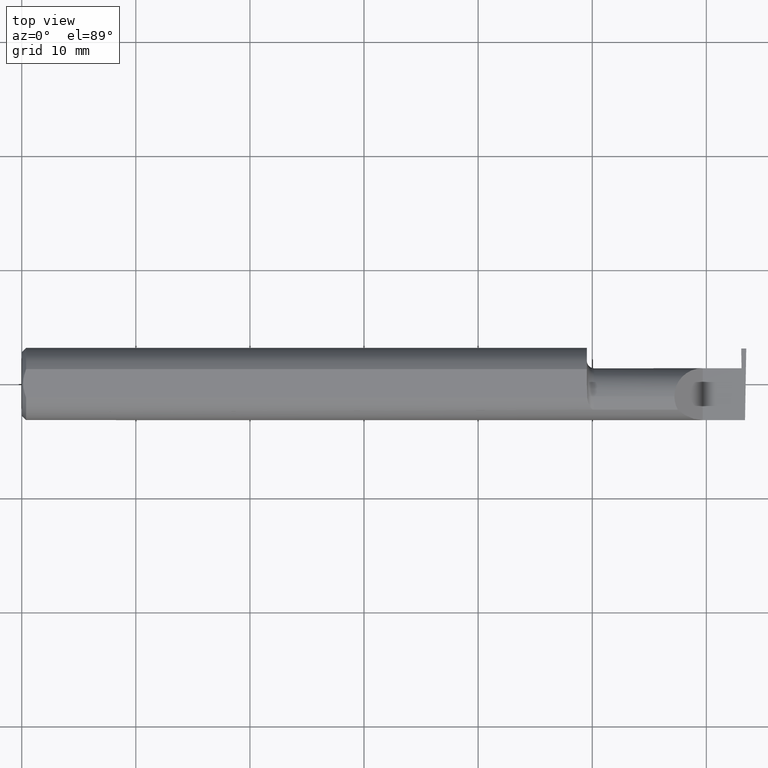
[diagram: clean part render]
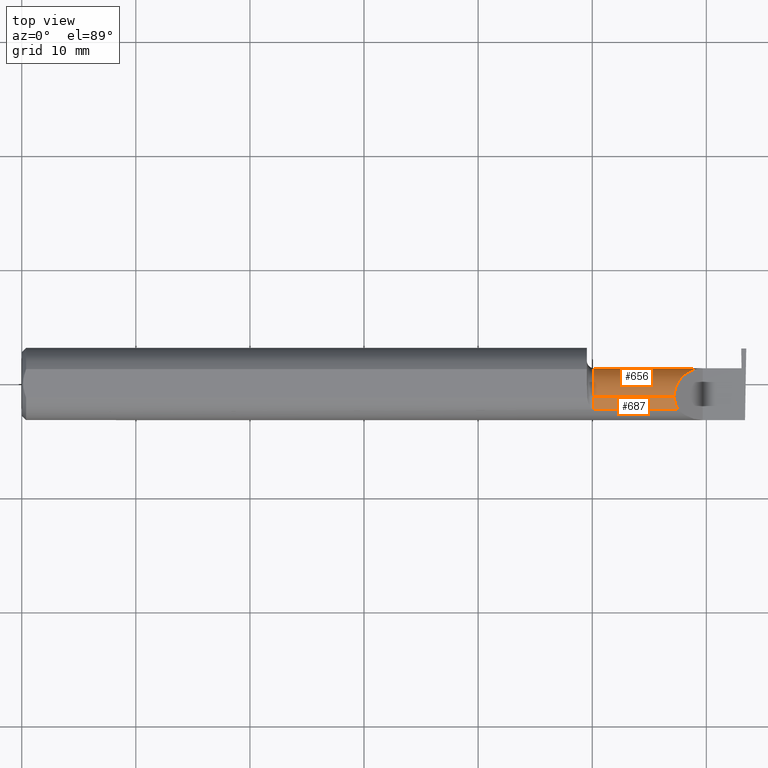
[diagram: same view with one multi-face feature highlighted, each face labeled with its STEP entity id]
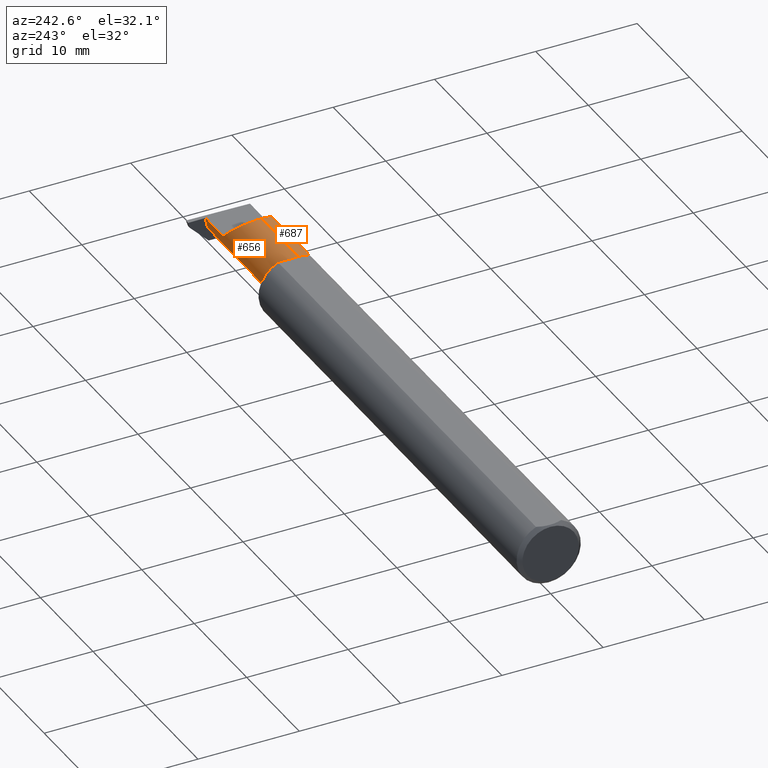
[diagram: same view with one multi-face feature highlighted, each face labeled with its STEP entity id]
A machine part, top view. The highlighted faces form ONE feature: a constant-radius fillet chain: 2 tangent blend faces with common blend radius 2.4892 mm. The faces share edges in the B-rep.
A second angle (auxiliary view) of the same feature is appended — it is thin or edge-on in the first view.
Their STEP definitions:
[1] entity #656 (Cylinder):
#20 = DIRECTION ( 'NONE',  ( 1.000000000000000000, 0.000000000000000000, 0.000000000000000000 ) ) ;
#39 = CARTESIAN_POINT ( 'NONE',  ( 2.483482208140546099, 0.05115612325138108735, -0.02403823089877875352 ) ) ;
#43 = CARTESIAN_POINT ( 'NONE',  ( 2.487353376795599758, -0.04385000000000004172, -0.09799999999999998990 ) ) ;
#58 = EDGE_CURVE ( 'NONE', #237, #217, #454, .T. ) ;
#62 = DIRECTION ( 'NONE',  ( -1.000000000000000000, -0.000000000000000000, -0.000000000000000000 ) ) ;
#67 = CARTESIAN_POINT ( 'NONE',  ( 1.949999999999999956, -0.04385000000000001397, 0.09799999999999998990 ) ) ;
#81 = VERTEX_POINT ( 'NONE', #39 ) ;
#91 = DIRECTION ( 'NONE',  ( -1.000000000000000000, -0.000000000000000000, -0.000000000000000000 ) ) ;
#105 = LINE ( 'NONE', #67, #642 ) ;
#117 = DIRECTION ( 'NONE',  ( -1.000000000000000000, -0.000000000000000000, -0.000000000000000000 ) ) ;
#121 = VECTOR ( 'NONE', #20, 39.37007874015748143 ) ;
#131 = ORIENTED_EDGE ( 'NONE', *, *, #696, .F. ) ;
#148 = CARTESIAN_POINT ( 'NONE',  ( 1.949999999999999956, -0.04385000000000000703, -0.09799999999999998990 ) ) ;
#164 = DIRECTION ( 'NONE',  ( 0.000000000000000000, 0.000000000000000000, 1.000000000000000000 ) ) ;
#167 = ORIENTED_EDGE ( 'NONE', *, *, #617, .T. ) ;
#174 = EDGE_CURVE ( 'NONE', #503, #81, #674, .T. ) ;
#177 = CYLINDRICAL_SURFACE ( 'NONE', #471, 0.09799999999999998990 ) ;
#212 = ORIENTED_EDGE ( 'NONE', *, *, #520, .T. ) ;
#217 = VERTEX_POINT ( 'NONE', #721 ) ;
#224 = CARTESIAN_POINT ( 'NONE',  ( 2.483482208140546099, 0.05115612325138108735, -0.02403823089877875352 ) ) ;
#234 = AXIS2_PLACEMENT_3D ( 'NONE', #260, #513, #638 ) ;
#237 = VERTEX_POINT ( 'NONE', #788 ) ;
#259 = DIRECTION ( 'NONE',  ( 0.000000000000000000, 0.000000000000000000, 1.000000000000000000 ) ) ;
#260 = CARTESIAN_POINT ( 'NONE',  ( 1.974999999999999867, -0.04385000000000001397, 0.000000000000000000 ) ) ;
#279 =( BOUNDED_CURVE ( )  B_SPLINE_CURVE ( 3, ( #284, #730, #306, #556 ),
 .UNSPECIFIED., .F., .T. ) 
 B_SPLINE_CURVE_WITH_KNOTS ( ( 4, 4 ),
 ( 0.000000000000000000, 1.570796326794896558 ),
 .UNSPECIFIED. ) 
 CURVE ( )  GEOMETRIC_REPRESENTATION_ITEM ( )  RATIONAL_B_SPLINE_CURVE ( ( 1.000000000000000000, 0.8047378541243649375, 0.8047378541243649375, 1.000000000000000000 ) ) 
 REPRESENTATION_ITEM ( '' )  );
#284 = CARTESIAN_POINT ( 'NONE',  ( 2.252000000000000668, -0.04385000000000001397, 0.09799999999999998990 ) ) ;
#292 = CARTESIAN_POINT ( 'NONE',  ( 2.485853341463134747, 0.03970102213383013001, -0.06931214282740411070 ) ) ;
#298 = EDGE_CURVE ( 'NONE', #81, #484, #510, .T. ) ;
#306 = CARTESIAN_POINT ( 'NONE',  ( 2.292592929112563738, 0.05415000000000001062, 0.05740707088743667724 ) ) ;
#313 = EDGE_CURVE ( 'NONE', #646, #545, #747, .T. ) ;
#321 = CARTESIAN_POINT ( 'NONE',  ( 2.252000000000000668, -0.04385000000000001397, 0.09799999999999998990 ) ) ;
#343 = CARTESIAN_POINT ( 'NONE',  ( 1.949999999999999956, -0.04385000000000001397, 0.000000000000000000 ) ) ;
#345 = ORIENTED_EDGE ( 'NONE', *, *, #531, .T. ) ;
#365 = AXIS2_PLACEMENT_3D ( 'NONE', #633, #91, #259 ) ;
#366 = FACE_OUTER_BOUND ( 'NONE', #507, .T. ) ;
#369 = CARTESIAN_POINT ( 'NONE',  ( 2.350000000000000089, 0.05414999999999985103, 1.836970198721028825E-17 ) ) ;
#397 = DIRECTION ( 'NONE',  ( -1.000000000000000000, -0.000000000000000000, -0.000000000000000000 ) ) ;
#454 = CIRCLE ( 'NONE', #234, 0.09799999999999998990 ) ;
#471 = AXIS2_PLACEMENT_3D ( 'NONE', #343, #117, #164 ) ;
#472 = CARTESIAN_POINT ( 'NONE',  ( 2.483160734290017047, 0.05314349951121604548, -0.01618353831829651146 ) ) ;
#482 = CARTESIAN_POINT ( 'NONE',  ( 2.483482208140546099, 0.05115612325138108735, -0.02403823089877875352 ) ) ;
#484 = VERTEX_POINT ( 'NONE', #711 ) ;
#490 = CARTESIAN_POINT ( 'NONE',  ( 2.482499999999999929, 0.05414999123725473817, -4.144270477499314721E-05 ) ) ;
#503 = VERTEX_POINT ( 'NONE', #43 ) ;
#507 = EDGE_LOOP ( 'NONE', ( #748, #212, #631, #131, #167, #516, #345, #787 ) ) ;
#510 =( BOUNDED_CURVE ( )  B_SPLINE_CURVE ( 3, ( #224, #472, #624, #490 ),
 .UNSPECIFIED., .F., .F. ) 
 B_SPLINE_CURVE_WITH_KNOTS ( ( 4, 4 ),
 ( 4.463962699426421210, 4.711356644242684411 ),
 .UNSPECIFIED. ) 
 CURVE ( )  GEOMETRIC_REPRESENTATION_ITEM ( )  RATIONAL_B_SPLINE_CURVE ( ( 1.000000000000000000, 0.9949061863228998437, 0.9949061863228998437, 1.000000000000000000 ) ) 
 REPRESENTATION_ITEM ( '' )  );
#513 = DIRECTION ( 'NONE',  ( -1.000000000000000000, -0.000000000000000000, -0.000000000000000000 ) ) ;
#516 = ORIENTED_EDGE ( 'NONE', *, *, #313, .T. ) ;
#518 = LINE ( 'NONE', #148, #784 ) ;
#520 = EDGE_CURVE ( 'NONE', #503, #217, #518, .T. ) ;
#524 = CIRCLE ( 'NONE', #365, 0.09799999999999998990 ) ;
#531 = EDGE_CURVE ( 'NONE', #545, #484, #524, .T. ) ;
#545 = VERTEX_POINT ( 'NONE', #573 ) ;
#556 = CARTESIAN_POINT ( 'NONE',  ( 2.350000000000000089, 0.05414999999999985103, 1.836970198721028825E-17 ) ) ;
#573 = CARTESIAN_POINT ( 'NONE',  ( 2.482499999999999929, 0.05414999999999997593, 6.735572271217495526E-17 ) ) ;
#587 = CARTESIAN_POINT ( 'NONE',  ( 2.487353376795599758, -0.04385000000000004172, -0.09799999999999998990 ) ) ;
#605 = CARTESIAN_POINT ( 'NONE',  ( 2.487354867654527624, 0.002850604310161121684, -0.09799999999999998990 ) ) ;
#614 = CARTESIAN_POINT ( 'NONE',  ( 1.949999999999999956, 0.05414999999999996899, 6.735557395310438818E-17 ) ) ;
#617 = EDGE_CURVE ( 'NONE', #753, #646, #279, .T. ) ;
#624 = CARTESIAN_POINT ( 'NONE',  ( 2.482831655309489793, 0.05414656493488105571, -0.008143655253979821193 ) ) ;
#631 = ORIENTED_EDGE ( 'NONE', *, *, #58, .F. ) ;
#633 = CARTESIAN_POINT ( 'NONE',  ( 2.482499999999999929, -0.04385000000000001397, 0.000000000000000000 ) ) ;
#638 = DIRECTION ( 'NONE',  ( 0.000000000000000000, 0.000000000000000000, 1.000000000000000000 ) ) ;
#642 = VECTOR ( 'NONE', #62, 39.37007874015748143 ) ;
#646 = VERTEX_POINT ( 'NONE', #369 ) ;
#656 = ADVANCED_FACE ( 'NONE', ( #366 ), #177, .T. ) ;
#674 =( BOUNDED_CURVE ( )  B_SPLINE_CURVE ( 3, ( #587, #605, #292, #482 ),
 .UNSPECIFIED., .F., .F. ) 
 B_SPLINE_CURVE_WITH_KNOTS ( ( 4, 4 ),
 ( 3.140983202202990654, 4.463962699426417657 ),
 .UNSPECIFIED. ) 
 CURVE ( )  GEOMETRIC_REPRESENTATION_ITEM ( )  RATIONAL_B_SPLINE_CURVE ( ( 1.000000000000000000, 0.8593853101475611433, 0.8593853101475611433, 1.000000000000000000 ) ) 
 REPRESENTATION_ITEM ( '' )  );
#696 = EDGE_CURVE ( 'NONE', #753, #237, #105, .T. ) ;
#711 = CARTESIAN_POINT ( 'NONE',  ( 2.482499999999999929, 0.05414999123725473817, -4.144270477499314721E-05 ) ) ;
#721 = CARTESIAN_POINT ( 'NONE',  ( 1.974999999999999867, -0.04385000000000000009, -0.09799999999999998990 ) ) ;
#730 = CARTESIAN_POINT ( 'NONE',  ( 2.252000000000000668, 0.01355707088743669450, 0.09799999999999996214 ) ) ;
#747 = LINE ( 'NONE', #614, #121 ) ;
#748 = ORIENTED_EDGE ( 'NONE', *, *, #174, .F. ) ;
#753 = VERTEX_POINT ( 'NONE', #321 ) ;
#784 = VECTOR ( 'NONE', #397, 39.37007874015748143 ) ;
#787 = ORIENTED_EDGE ( 'NONE', *, *, #298, .F. ) ;
#788 = CARTESIAN_POINT ( 'NONE',  ( 1.974999999999999867, -0.04385000000000001397, 0.09799999999999998990 ) ) ;
[2] entity #687 (Cylinder):
#51 = ORIENTED_EDGE ( 'NONE', *, *, #445, .T. ) ;
#62 = DIRECTION ( 'NONE',  ( -1.000000000000000000, -0.000000000000000000, -0.000000000000000000 ) ) ;
#67 = CARTESIAN_POINT ( 'NONE',  ( 1.949999999999999956, -0.04385000000000001397, 0.09799999999999998990 ) ) ;
#88 = CARTESIAN_POINT ( 'NONE',  ( 2.255955442396119004, -0.07583965973232800750, 0.09404455760388212571 ) ) ;
#100 = EDGE_CURVE ( 'NONE', #543, #753, #422, .T. ) ;
#105 = LINE ( 'NONE', #67, #642 ) ;
#137 = LINE ( 'NONE', #742, #575 ) ;
#232 = DIRECTION ( 'NONE',  ( 0.000000000000000000, 0.000000000000000000, 1.000000000000000000 ) ) ;
#237 = VERTEX_POINT ( 'NONE', #788 ) ;
#242 = EDGE_CURVE ( 'NONE', #314, #237, #469, .T. ) ;
#287 = AXIS2_PLACEMENT_3D ( 'NONE', #359, #406, #739 ) ;
#293 = ORIENTED_EDGE ( 'NONE', *, *, #696, .T. ) ;
#314 = VERTEX_POINT ( 'NONE', #370 ) ;
#321 = CARTESIAN_POINT ( 'NONE',  ( 2.252000000000000668, -0.04385000000000001397, 0.09799999999999998990 ) ) ;
#330 = ORIENTED_EDGE ( 'NONE', *, *, #242, .F. ) ;
#359 = CARTESIAN_POINT ( 'NONE',  ( 1.949999999999999956, -0.04385000000000001397, 0.000000000000000000 ) ) ;
#361 = DIRECTION ( 'NONE',  ( 1.000000000000000000, 0.000000000000000000, 0.000000000000000000 ) ) ;
#370 = CARTESIAN_POINT ( 'NONE',  ( 1.974999999999999867, -0.09015216647662489813, 0.08637192471845762942 ) ) ;
#406 = DIRECTION ( 'NONE',  ( -1.000000000000000000, -0.000000000000000000, -0.000000000000000000 ) ) ;
#414 = CARTESIAN_POINT ( 'NONE',  ( 1.974999999999999867, -0.04385000000000001397, 0.000000000000000000 ) ) ;
#419 = FACE_OUTER_BOUND ( 'NONE', #763, .T. ) ;
#422 =( BOUNDED_CURVE ( )  B_SPLINE_CURVE ( 3, ( #530, #88, #574, #526 ),
 .UNSPECIFIED., .F., .T. ) 
 B_SPLINE_CURVE_WITH_KNOTS ( ( 4, 4 ),
 ( 5.791092865617128993, 6.283185307179586232 ),
 .UNSPECIFIED. ) 
 CURVE ( )  GEOMETRIC_REPRESENTATION_ITEM ( )  RATIONAL_B_SPLINE_CURVE ( ( 1.000000000000000000, 0.9799220177372781615, 0.9799220177372781615, 1.000000000000000000 ) ) 
 REPRESENTATION_ITEM ( '' )  );
#427 = AXIS2_PLACEMENT_3D ( 'NONE', #414, #659, #232 ) ;
#445 = EDGE_CURVE ( 'NONE', #314, #543, #137, .T. ) ;
#469 = CIRCLE ( 'NONE', #427, 0.09799999999999998990 ) ;
#470 = CYLINDRICAL_SURFACE ( 'NONE', #287, 0.09799999999999998990 ) ;
#526 = CARTESIAN_POINT ( 'NONE',  ( 2.252000000000000668, -0.04385000000000001397, 0.09799999999999998990 ) ) ;
#530 = CARTESIAN_POINT ( 'NONE',  ( 2.263628075281542973, -0.09015216647662456506, 0.08637192471845794861 ) ) ;
#543 = VERTEX_POINT ( 'NONE', #650 ) ;
#574 = CARTESIAN_POINT ( 'NONE',  ( 2.252000000000000668, -0.06008937020638518284, 0.09799999999999996214 ) ) ;
#575 = VECTOR ( 'NONE', #361, 39.37007874015748143 ) ;
#642 = VECTOR ( 'NONE', #62, 39.37007874015748143 ) ;
#650 = CARTESIAN_POINT ( 'NONE',  ( 2.263628075281542973, -0.09015216647662456506, 0.08637192471845794861 ) ) ;
#659 = DIRECTION ( 'NONE',  ( -1.000000000000000000, -0.000000000000000000, -0.000000000000000000 ) ) ;
#687 = ADVANCED_FACE ( 'NONE', ( #419 ), #470, .T. ) ;
#696 = EDGE_CURVE ( 'NONE', #753, #237, #105, .T. ) ;
#738 = ORIENTED_EDGE ( 'NONE', *, *, #100, .T. ) ;
#739 = DIRECTION ( 'NONE',  ( 0.000000000000000000, 0.000000000000000000, 1.000000000000000000 ) ) ;
#742 = CARTESIAN_POINT ( 'NONE',  ( 2.228750000000000231, -0.09015216647662485649, 0.08637192471845764330 ) ) ;
#753 = VERTEX_POINT ( 'NONE', #321 ) ;
#763 = EDGE_LOOP ( 'NONE', ( #738, #293, #330, #51 ) ) ;
#788 = CARTESIAN_POINT ( 'NONE',  ( 1.974999999999999867, -0.04385000000000001397, 0.09799999999999998990 ) ) ;